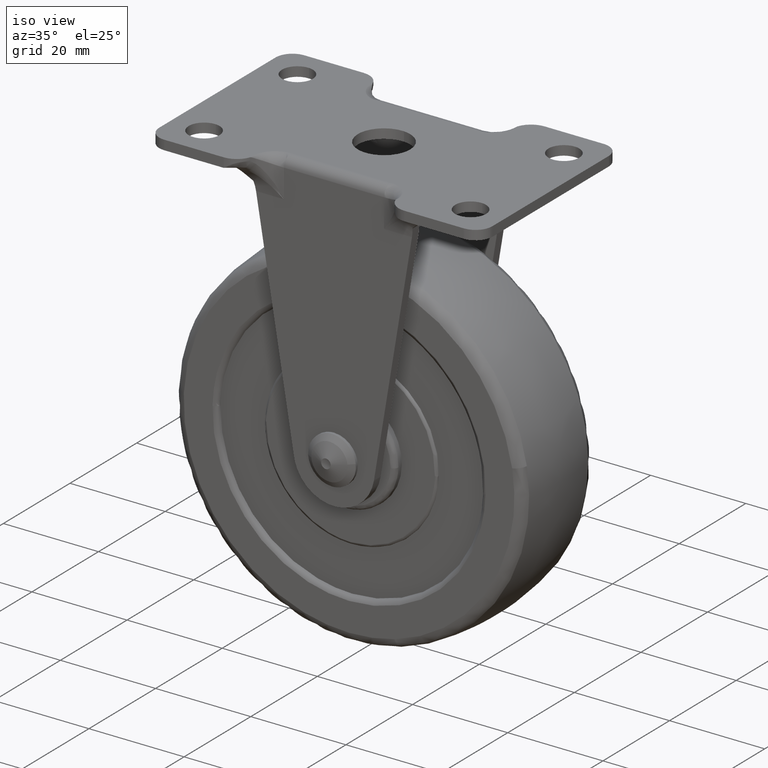
[diagram: clean part render]
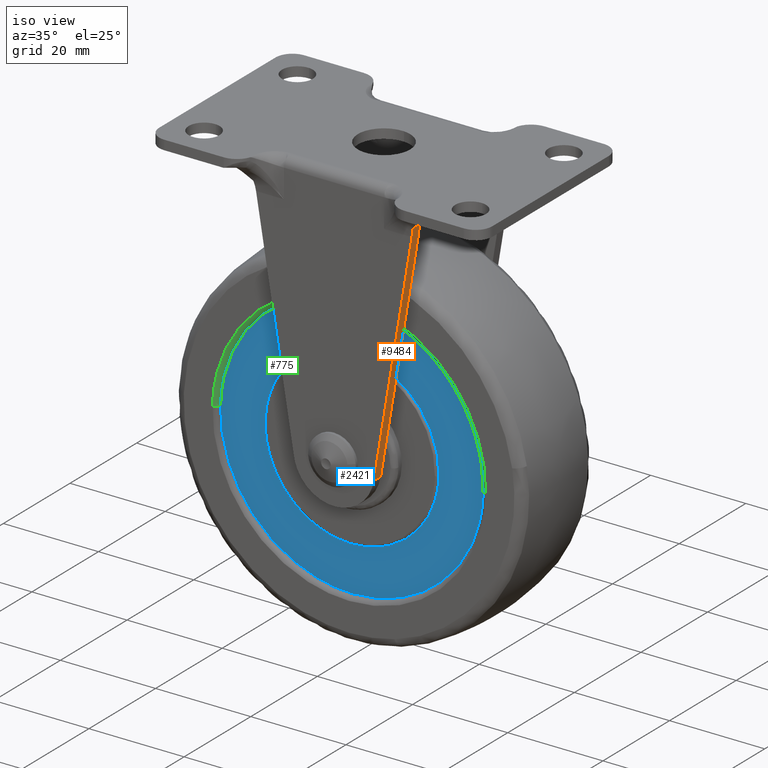
[diagram: same view with three faces highlighted in distinct colors, each labeled with its STEP entity id]
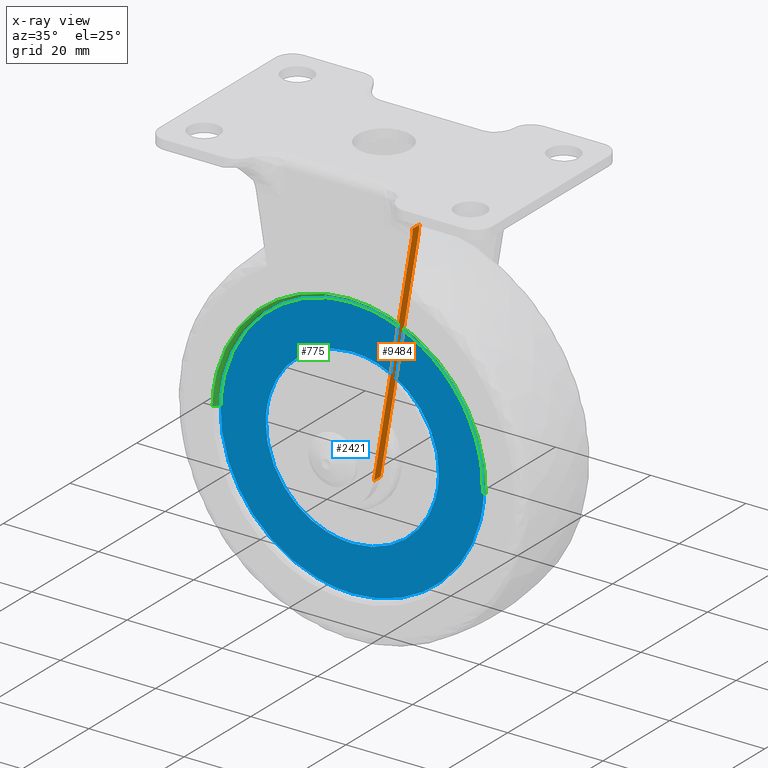
[diagram: x-ray of the same camera — body ghosted, the three highlighted faces saturated]
A machine part, iso view with three faces highlighted in distinct colors.
The next image is the same camera in x-ray (body ghosted, the three faces saturated) — at least one of them is partly hidden behind the body in this view.
Their STEP definitions:

[orange] entity #9484 — the highlighted face is a freeform B-spline surface patch.
#5781=CARTESIAN_POINT('',(16.676913009995399,-13.344930188508719,48.270380773236703));
#5782=VERTEX_POINT('',#5781);
#5790=CARTESIAN_POINT('',(16.680932437881651,-13.203907277976921,48.294697264058499));
#5791=VERTEX_POINT('',#5790);
#5792=CARTESIAN_POINT('',(16.680932437881602,-13.203907277976899,48.294697264058499));
#5793=CARTESIAN_POINT('',(16.678139670267580,-13.248858184895990,48.277801748085373));
#5794=CARTESIAN_POINT('',(16.676922470560491,-13.296859604261870,48.270438007189057));
#5795=CARTESIAN_POINT('',(16.676913009995399,-13.344930188508719,48.270380773236703));
#5796=QUASI_UNIFORM_CURVE('',3,(#5792,#5793,#5794,#5795),.UNSPECIFIED.,.F.,.U.);
#5797=EDGE_CURVE('',#5791,#5782,#5796,.T.);
#5841=CARTESIAN_POINT('',(16.676874599543950,-15.267062302631301,48.270148400018698));
#5842=VERTEX_POINT('',#5841);
#5858=CARTESIAN_POINT('',(16.676913009995399,-13.344930188508719,48.270380773236703));
#5859=CARTESIAN_POINT('',(16.676874599543950,-15.267062302631301,48.270148400018698));
#5860=QUASI_UNIFORM_CURVE('',1,(#5858,#5859),.UNSPECIFIED.,.F.,.U.);
#5861=EDGE_CURVE('',#5782,#5842,#5860,.T.);
#8000=CARTESIAN_POINT('',(16.384275478484749,-13.0,46.500000000000000));
#8001=VERTEX_POINT('',#8000);
#8015=CARTESIAN_POINT('',(16.680932437881641,-13.203907277976921,48.294697264058406));
#8016=CARTESIAN_POINT('',(16.534518688431618,-12.999999999999998,47.408932250850221));
#8017=CARTESIAN_POINT('',(16.384275478484749,-13.0,46.500000000000000));
#8025=(BOUNDED_CURVE()B_SPLINE_CURVE(2,(#8015,#8016,#8017),.UNSPECIFIED.,.F.,.U.)CURVE()GEOMETRIC_REPRESENTATION_ITEM()QUASI_UNIFORM_CURVE()RATIONAL_B_SPLINE_CURVE((1.0,0.993607465313319,1.0))REPRESENTATION_ITEM(''));
#8026=EDGE_CURVE('',#5791,#8001,#8025,.T.);
#8051=CARTESIAN_POINT('',(8.386210000000000,-13.0,-1.886211000000000));
#8052=VERTEX_POINT('',#8051);
#8053=CARTESIAN_POINT('',(16.384275478484749,-13.0,46.500000000000000));
#8054=CARTESIAN_POINT('',(8.386210000000000,-13.0,-1.886211000000000));
#8055=QUASI_UNIFORM_CURVE('',1,(#8053,#8054),.UNSPECIFIED.,.F.,.U.);
#8056=EDGE_CURVE('',#8001,#8052,#8055,.T.);
#8849=CARTESIAN_POINT('',(16.384275478484749,-15.0,46.500000000000000));
#8850=VERTEX_POINT('',#8849);
#8856=CARTESIAN_POINT('',(16.676874599543940,-15.267062302631290,48.270148400018698));
#8857=CARTESIAN_POINT('',(16.533905074382883,-15.000000000000004,47.405220045828251));
#8858=CARTESIAN_POINT('',(16.384275478484749,-15.0,46.500000000000000));
#8866=(BOUNDED_CURVE()B_SPLINE_CURVE(2,(#8856,#8857,#8858),.UNSPECIFIED.,.F.,.U.)CURVE()GEOMETRIC_REPRESENTATION_ITEM()QUASI_UNIFORM_CURVE()RATIONAL_B_SPLINE_CURVE((1.0,0.988809793698496,1.0))REPRESENTATION_ITEM(''));
#8867=EDGE_CURVE('',#5842,#8850,#8866,.T.);
#8895=CARTESIAN_POINT('',(8.386210000000000,-15.0,-1.886211000000000));
#8896=VERTEX_POINT('',#8895);
#8912=CARTESIAN_POINT('',(16.384275478484749,-15.0,46.500000000000000));
#8913=CARTESIAN_POINT('',(8.386210000000000,-15.0,-1.886211000000000));
#8914=QUASI_UNIFORM_CURVE('',1,(#8912,#8913),.UNSPECIFIED.,.F.,.U.);
#8915=EDGE_CURVE('',#8850,#8896,#8914,.T.);
#9466=CARTESIAN_POINT('',(17.095253807576981,-15.380301953845930,50.801233534587887));
#9467=CARTESIAN_POINT('',(7.971888407822805,-15.380301953845930,-4.392748616486232));
#9468=CARTESIAN_POINT('',(17.095253807576981,-12.886760186632440,50.801233534587887));
#9469=CARTESIAN_POINT('',(7.971888407822805,-12.886760186632440,-4.392748616486232));
#9470=B_SPLINE_SURFACE_WITH_KNOTS('',1,1,((#9466,#9468),(#9467,#9469)),.UNSPECIFIED.,.F.,.F.,.U.,(2,2),(2,2),(0.0,55.942930401530809),(0.0,2.493541767213499),.UNSPECIFIED.);
#9471=ORIENTED_EDGE('',*,*,#8026,.F.);
#9472=ORIENTED_EDGE('',*,*,#5797,.T.);
#9473=ORIENTED_EDGE('',*,*,#5861,.T.);
#9474=ORIENTED_EDGE('',*,*,#8867,.T.);
#9475=ORIENTED_EDGE('',*,*,#8915,.T.);
#9476=CARTESIAN_POINT('',(8.386210000000000,-13.0,-1.886211000000000));
#9477=CARTESIAN_POINT('',(8.386210000000000,-15.0,-1.886211000000000));
#9478=QUASI_UNIFORM_CURVE('',1,(#9476,#9477),.UNSPECIFIED.,.F.,.U.);
#9479=EDGE_CURVE('',#8052,#8896,#9478,.T.);
#9480=ORIENTED_EDGE('',*,*,#9479,.F.);
#9481=ORIENTED_EDGE('',*,*,#8056,.F.);
#9482=EDGE_LOOP('',(#9471,#9472,#9473,#9474,#9475,#9480,#9481));
#9483=FACE_OUTER_BOUND('',#9482,.T.);
#9484=ADVANCED_FACE('',(#9483),#9470,.T.);

[blue] entity #2421 — the highlighted face is a freeform B-spline surface patch.
#713=CARTESIAN_POINT('',(-27.691253042830208,-9.500000000019591,0.696103668965716));
#714=VERTEX_POINT('',#713);
#728=CARTESIAN_POINT('',(0.0,-9.500000000000108,27.700001000000000));
#729=VERTEX_POINT('',#728);
#730=CARTESIAN_POINT('',(0.0,-9.500000000000108,27.700001000000000));
#731=CARTESIAN_POINT('',(-27.012428145274118,-9.500000000000108,27.700000999999993));
#732=CARTESIAN_POINT('',(-27.691253042830208,-9.500000000019591,0.696103668965716));
#740=(BOUNDED_CURVE()B_SPLINE_CURVE(2,(#730,#731,#732),.UNSPECIFIED.,.F.,.U.)B_SPLINE_CURVE_WITH_KNOTS((3,3),(0.500000000000000,0.745579891769110),.UNSPECIFIED.)CURVE()GEOMETRIC_REPRESENTATION_ITEM()RATIONAL_B_SPLINE_CURVE((1.0,0.712285260095544,0.989826157679999))REPRESENTATION_ITEM(''));
#741=EDGE_CURVE('',#729,#714,#740,.T.);
#743=CARTESIAN_POINT('',(27.691253042830208,-9.500000000019591,-0.696103668965721));
#744=VERTEX_POINT('',#743);
#745=CARTESIAN_POINT('',(27.691253042830201,-9.500000000019591,-0.696103668965721));
#746=CARTESIAN_POINT('',(27.700000999999993,-9.500000000000108,-0.348106802439844));
#747=CARTESIAN_POINT('',(27.700001000000000,-9.500000000000108,1.211545E-015));
#748=CARTESIAN_POINT('',(27.700001000000000,-9.500000000000108,27.700001000000000));
#749=CARTESIAN_POINT('',(0.0,-9.500000000000108,27.700001000000000));
#757=(BOUNDED_CURVE()B_SPLINE_CURVE(2,(#745,#746,#747,#748,#749),.UNSPECIFIED.,.F.,.U.)B_SPLINE_CURVE_WITH_KNOTS((3,2,3),(0.245579891769110,0.250000000000000,0.500000000000000),.UNSPECIFIED.)CURVE()GEOMETRIC_REPRESENTATION_ITEM()RATIONAL_B_SPLINE_CURVE((0.989826157680000,0.994821521091004,1.0,0.707106781186548,1.0))REPRESENTATION_ITEM(''));
#758=EDGE_CURVE('',#744,#729,#757,.T.);
#815=CARTESIAN_POINT('',(0.0,-9.500000000000108,-27.700001000000000));
#816=VERTEX_POINT('',#815);
#817=CARTESIAN_POINT('',(0.0,-9.500000000000108,-27.700001000000000));
#818=CARTESIAN_POINT('',(27.012428145274189,-9.500000000000108,-27.700001000000000));
#819=CARTESIAN_POINT('',(27.691253042830208,-9.500000000019591,-0.696103668965721));
#827=(BOUNDED_CURVE()B_SPLINE_CURVE(2,(#817,#818,#819),.UNSPECIFIED.,.F.,.U.)B_SPLINE_CURVE_WITH_KNOTS((3,3),(0.0,0.245579891769110),.UNSPECIFIED.)CURVE()GEOMETRIC_REPRESENTATION_ITEM()RATIONAL_B_SPLINE_CURVE((1.0,0.712285260095544,0.989826157680000))REPRESENTATION_ITEM(''));
#828=EDGE_CURVE('',#816,#744,#827,.T.);
#830=CARTESIAN_POINT('',(-27.691253042830208,-9.500000000019591,0.696103668965716));
#831=CARTESIAN_POINT('',(-27.700000999999993,-9.500000000000108,0.348106802439842));
#832=CARTESIAN_POINT('',(-27.700001000000000,-9.500000000000108,1.211545E-015));
#833=CARTESIAN_POINT('',(-27.700001000000000,-9.500000000000108,-27.700001000000000));
#834=CARTESIAN_POINT('',(0.0,-9.500000000000108,-27.700001000000000));
#842=(BOUNDED_CURVE()B_SPLINE_CURVE(2,(#830,#831,#832,#833,#834),.UNSPECIFIED.,.F.,.U.)B_SPLINE_CURVE_WITH_KNOTS((3,2,3),(0.745579891769110,0.750000000000000,1.0),.UNSPECIFIED.)CURVE()GEOMETRIC_REPRESENTATION_ITEM()RATIONAL_B_SPLINE_CURVE((0.989826157680000,0.994821521091004,1.0,0.707106781186548,1.0))REPRESENTATION_ITEM(''));
#843=EDGE_CURVE('',#714,#816,#842,.T.);
#887=CARTESIAN_POINT('',(-18.194253244639640,-9.500000004136529,0.457367762222901));
#888=VERTEX_POINT('',#887);
#889=CARTESIAN_POINT('',(0.0,-9.500000000000108,-18.200001000000000));
#890=VERTEX_POINT('',#889);
#891=CARTESIAN_POINT('',(-18.194253244639640,-9.500000004136529,0.457367762222901));
#892=CARTESIAN_POINT('',(-18.200000999999997,-9.500000000000110,0.228719997236616));
#893=CARTESIAN_POINT('',(-18.200001000000000,-9.500000000000108,1.211545E-015));
#894=CARTESIAN_POINT('',(-18.200001000000004,-9.500000000000108,-18.200001000000004));
#895=CARTESIAN_POINT('',(0.0,-9.500000000000108,-18.200001000000000));
#903=(BOUNDED_CURVE()B_SPLINE_CURVE(2,(#891,#892,#893,#894,#895),.UNSPECIFIED.,.F.,.U.)B_SPLINE_CURVE_WITH_KNOTS((3,2,3),(0.745579891769345,0.750000000000000,1.0),.UNSPECIFIED.)CURVE()GEOMETRIC_REPRESENTATION_ITEM()RATIONAL_B_SPLINE_CURVE((0.989826157680530,0.994821521091278,1.0,0.707106781186548,1.0))REPRESENTATION_ITEM(''));
#904=EDGE_CURVE('',#888,#890,#903,.T.);
#906=CARTESIAN_POINT('',(18.194253244639640,-9.500000004136528,-0.457367762222898));
#907=VERTEX_POINT('',#906);
#908=CARTESIAN_POINT('',(0.0,-9.500000000000108,-18.200001000000000));
#909=CARTESIAN_POINT('',(17.748238321618722,-9.500000000000108,-18.200000999999993));
#910=CARTESIAN_POINT('',(18.194253244639640,-9.500000004136528,-0.457367762222899));
#918=(BOUNDED_CURVE()B_SPLINE_CURVE(2,(#908,#909,#910),.UNSPECIFIED.,.F.,.U.)B_SPLINE_CURVE_WITH_KNOTS((3,3),(0.0,0.245579891769345),.UNSPECIFIED.)CURVE()GEOMETRIC_REPRESENTATION_ITEM()RATIONAL_B_SPLINE_CURVE((1.0,0.712285260095269,0.989826157680530))REPRESENTATION_ITEM(''));
#919=EDGE_CURVE('',#890,#907,#918,.T.);
#1007=CARTESIAN_POINT('',(0.0,-9.500000000000108,18.200001000000000));
#1008=VERTEX_POINT('',#1007);
#1009=CARTESIAN_POINT('',(0.0,-9.500000000000108,18.200001000000000));
#1010=CARTESIAN_POINT('',(-17.748238321618782,-9.500000000000108,18.200000999999997));
#1011=CARTESIAN_POINT('',(-18.194253244639636,-9.500000004136529,0.457367762222901));
#1019=(BOUNDED_CURVE()B_SPLINE_CURVE(2,(#1009,#1010,#1011),.UNSPECIFIED.,.F.,.U.)B_SPLINE_CURVE_WITH_KNOTS((3,3),(0.500000000000000,0.745579891769345),.UNSPECIFIED.)CURVE()GEOMETRIC_REPRESENTATION_ITEM()RATIONAL_B_SPLINE_CURVE((1.0,0.712285260095269,0.989826157680531))REPRESENTATION_ITEM(''));
#1020=EDGE_CURVE('',#1008,#888,#1019,.T.);
#1054=CARTESIAN_POINT('',(18.194253244639640,-9.500000004136528,-0.457367762222899));
#1055=CARTESIAN_POINT('',(18.200000999999997,-9.500000000000110,-0.228719997236614));
#1056=CARTESIAN_POINT('',(18.200001000000000,-9.500000000000108,1.211545E-015));
#1057=CARTESIAN_POINT('',(18.200001000000004,-9.500000000000108,18.200001000000004));
#1058=CARTESIAN_POINT('',(0.0,-9.500000000000108,18.200001000000000));
#1066=(BOUNDED_CURVE()B_SPLINE_CURVE(2,(#1054,#1055,#1056,#1057,#1058),.UNSPECIFIED.,.F.,.U.)B_SPLINE_CURVE_WITH_KNOTS((3,2,3),(0.245579891769345,0.250000000000000,0.500000000000000),.UNSPECIFIED.)CURVE()GEOMETRIC_REPRESENTATION_ITEM()RATIONAL_B_SPLINE_CURVE((0.989826157680530,0.994821521091278,1.0,0.707106781186548,1.0))REPRESENTATION_ITEM(''));
#1067=EDGE_CURVE('',#907,#1008,#1066,.T.);
#2404=CARTESIAN_POINT('',(-30.457610154249579,-9.500000000000108,30.467230992524041));
#2405=CARTESIAN_POINT('',(-30.457610154249579,-9.500000000000108,-30.467232478467889));
#2406=CARTESIAN_POINT('',(30.457610649407769,-9.500000000000108,30.467230992524041));
#2407=CARTESIAN_POINT('',(30.457610649407769,-9.500000000000108,-30.467232478467889));
#2408=B_SPLINE_SURFACE_WITH_KNOTS('',1,1,((#2404,#2406),(#2405,#2407)),.UNSPECIFIED.,.F.,.F.,.U.,(2,2),(2,2),(0.0,60.934463470991943),(0.0,60.915220803657348),.UNSPECIFIED.);
#2409=ORIENTED_EDGE('',*,*,#828,.T.);
#2410=ORIENTED_EDGE('',*,*,#758,.T.);
#2411=ORIENTED_EDGE('',*,*,#741,.T.);
#2412=ORIENTED_EDGE('',*,*,#843,.T.);
#2413=EDGE_LOOP('',(#2409,#2410,#2411,#2412));
#2414=FACE_OUTER_BOUND('',#2413,.T.);
#2415=ORIENTED_EDGE('',*,*,#919,.F.);
#2416=ORIENTED_EDGE('',*,*,#904,.F.);
#2417=ORIENTED_EDGE('',*,*,#1020,.F.);
#2418=ORIENTED_EDGE('',*,*,#1067,.F.);
#2419=EDGE_LOOP('',(#2415,#2416,#2417,#2418));
#2420=FACE_BOUND('',#2419,.T.);
#2421=ADVANCED_FACE('',(#2414,#2420),#2408,.T.);

[green] entity #775 — the highlighted face is a freeform B-spline surface patch.
#656=CARTESIAN_POINT('',(28.760639749933521,-10.497566282940518,-0.722985948637890));
#657=CARTESIAN_POINT('',(29.483625698571416,-10.497566282940515,28.037653801295622));
#658=CARTESIAN_POINT('',(0.722985948637892,-10.497566282940518,28.760639749933521));
#659=CARTESIAN_POINT('',(-28.037653801295622,-10.497566282940515,29.483625698571416));
#660=CARTESIAN_POINT('',(-28.760639749933521,-10.497566282940518,0.722985948637893));
#661=CARTESIAN_POINT('',(27.613941736902497,-10.577739648912944,-0.694160214650024));
#662=CARTESIAN_POINT('',(28.308101951552533,-10.577739648912944,26.919781522252482));
#663=CARTESIAN_POINT('',(0.694160214650026,-10.577739648912944,27.613941736902497));
#664=CARTESIAN_POINT('',(-26.919781522252482,-10.577739648912944,28.308101951552533));
#665=CARTESIAN_POINT('',(-27.613941736902497,-10.577739648912944,0.694160214650028));
#666=CARTESIAN_POINT('',(27.693659933080887,-9.430649409224731,-0.696164173400207));
#667=CARTESIAN_POINT('',(28.389824106481090,-9.430649409224731,26.997495759680671));
#668=CARTESIAN_POINT('',(0.696164173400209,-9.430649409224731,27.693659933080887));
#669=CARTESIAN_POINT('',(-26.997495759680671,-9.430649409224731,28.389824106481090));
#670=CARTESIAN_POINT('',(-27.693659933080887,-9.430649409224731,0.696164173400211));
#678=(BOUNDED_SURFACE()B_SPLINE_SURFACE(2,2,((#656,#661,#666),(#657,#662,#667),(#658,#663,#668),(#659,#664,#669),(#660,#665,#670)),.UNSPECIFIED.,.F.,.F.,.U.)B_SPLINE_SURFACE_WITH_KNOTS((3,2,3),(3,3),(0.0,47.667242013660257,95.334484027320528),(0.0,1.822370772989329),.UNSPECIFIED.)GEOMETRIC_REPRESENTATION_ITEM()RATIONAL_B_SPLINE_SURFACE(((0.910893087065993,0.599412856614250,0.915966628368002),(0.644098678800312,0.423848895642336,0.647686214259592),(0.910893087065993,0.599412856614250,0.915966628368002),(0.644098678800312,0.423848895642336,0.647686214259592),(0.910893087065993,0.599412856614250,0.915966628368002)))REPRESENTATION_ITEM('')SURFACE());
#679=CARTESIAN_POINT('',(28.690937227376921,-10.499999999999940,-0.721233764432394));
#680=VERTEX_POINT('',#679);
#681=CARTESIAN_POINT('',(0.0,-10.500000000000000,28.700001000000000));
#682=VERTEX_POINT('',#681);
#683=CARTESIAN_POINT('',(28.690937227376914,-10.499999999999940,-0.721233764432394));
#684=CARTESIAN_POINT('',(28.700000999999997,-10.499999999999998,-0.360673834705606));
#685=CARTESIAN_POINT('',(28.700001000000000,-10.500000000000000,1.211545E-015));
#686=CARTESIAN_POINT('',(28.700000999999997,-10.500000000000000,28.700000999999997));
#687=CARTESIAN_POINT('',(0.0,-10.500000000000000,28.700001000000000));
#695=(BOUNDED_CURVE()B_SPLINE_CURVE(2,(#683,#684,#685,#686,#687),.UNSPECIFIED.,.F.,.U.)B_SPLINE_CURVE_WITH_KNOTS((3,2,3),(0.245579891767399,0.250000000000000,0.500000000000000),.UNSPECIFIED.)CURVE()GEOMETRIC_REPRESENTATION_ITEM()RATIONAL_B_SPLINE_CURVE((0.989826157676131,0.994821521088998,1.0,0.707106781186547,1.0))REPRESENTATION_ITEM(''));
#696=EDGE_CURVE('',#680,#682,#695,.T.);
#697=ORIENTED_EDGE('',*,*,#696,.T.);
#698=CARTESIAN_POINT('',(-28.690937227376910,-10.499999999999950,0.721233764432392));
#699=VERTEX_POINT('',#698);
#700=CARTESIAN_POINT('',(0.0,-10.500000000000000,28.700001000000000));
#701=CARTESIAN_POINT('',(-27.987606021176973,-10.500000000000000,28.700001000000004));
#702=CARTESIAN_POINT('',(-28.690937227376910,-10.499999999999947,0.721233764432392));
#710=(BOUNDED_CURVE()B_SPLINE_CURVE(2,(#700,#701,#702),.UNSPECIFIED.,.F.,.U.)B_SPLINE_CURVE_WITH_KNOTS((3,3),(0.500000000000000,0.745579891767398),.UNSPECIFIED.)CURVE()GEOMETRIC_REPRESENTATION_ITEM()RATIONAL_B_SPLINE_CURVE((1.0,0.712285260097550,0.989826157676130))REPRESENTATION_ITEM(''));
#711=EDGE_CURVE('',#682,#699,#710,.T.);
#712=ORIENTED_EDGE('',*,*,#711,.T.);
#713=CARTESIAN_POINT('',(-27.691253042830208,-9.500000000019591,0.696103668965716));
#714=VERTEX_POINT('',#713);
#715=CARTESIAN_POINT('',(-28.690937227376910,-10.499999999999945,0.721233764432392));
#716=CARTESIAN_POINT('',(-27.691253042870766,-10.499999990530869,0.696103668911534));
#717=CARTESIAN_POINT('',(-27.691253042830212,-9.500000000019593,0.696103668965716));
#725=(BOUNDED_CURVE()B_SPLINE_CURVE(2,(#715,#716,#717),.UNSPECIFIED.,.F.,.U.)B_SPLINE_CURVE_WITH_KNOTS((3,3),(-1.723441272235563,-0.263586878968385),.UNSPECIFIED.)CURVE()GEOMETRIC_REPRESENTATION_ITEM()RATIONAL_B_SPLINE_CURVE((0.883897563702610,0.626638728993519,0.888510409048000))REPRESENTATION_ITEM(''));
#726=EDGE_CURVE('',#699,#714,#725,.T.);
#727=ORIENTED_EDGE('',*,*,#726,.T.);
#728=CARTESIAN_POINT('',(0.0,-9.500000000000108,27.700001000000000));
#729=VERTEX_POINT('',#728);
#730=CARTESIAN_POINT('',(0.0,-9.500000000000108,27.700001000000000));
#731=CARTESIAN_POINT('',(-27.012428145274118,-9.500000000000108,27.700000999999993));
#732=CARTESIAN_POINT('',(-27.691253042830208,-9.500000000019591,0.696103668965716));
#740=(BOUNDED_CURVE()B_SPLINE_CURVE(2,(#730,#731,#732),.UNSPECIFIED.,.F.,.U.)B_SPLINE_CURVE_WITH_KNOTS((3,3),(0.500000000000000,0.745579891769110),.UNSPECIFIED.)CURVE()GEOMETRIC_REPRESENTATION_ITEM()RATIONAL_B_SPLINE_CURVE((1.0,0.712285260095544,0.989826157679999))REPRESENTATION_ITEM(''));
#741=EDGE_CURVE('',#729,#714,#740,.T.);
#742=ORIENTED_EDGE('',*,*,#741,.F.);
#743=CARTESIAN_POINT('',(27.691253042830208,-9.500000000019591,-0.696103668965721));
#744=VERTEX_POINT('',#743);
#745=CARTESIAN_POINT('',(27.691253042830201,-9.500000000019591,-0.696103668965721));
#746=CARTESIAN_POINT('',(27.700000999999993,-9.500000000000108,-0.348106802439844));
#747=CARTESIAN_POINT('',(27.700001000000000,-9.500000000000108,1.211545E-015));
#748=CARTESIAN_POINT('',(27.700001000000000,-9.500000000000108,27.700001000000000));
#749=CARTESIAN_POINT('',(0.0,-9.500000000000108,27.700001000000000));
#757=(BOUNDED_CURVE()B_SPLINE_CURVE(2,(#745,#746,#747,#748,#749),.UNSPECIFIED.,.F.,.U.)B_SPLINE_CURVE_WITH_KNOTS((3,2,3),(0.245579891769110,0.250000000000000,0.500000000000000),.UNSPECIFIED.)CURVE()GEOMETRIC_REPRESENTATION_ITEM()RATIONAL_B_SPLINE_CURVE((0.989826157680000,0.994821521091004,1.0,0.707106781186548,1.0))REPRESENTATION_ITEM(''));
#758=EDGE_CURVE('',#744,#729,#757,.T.);
#759=ORIENTED_EDGE('',*,*,#758,.F.);
#760=CARTESIAN_POINT('',(28.690937227376917,-10.499999999999943,-0.721233764432394));
#761=CARTESIAN_POINT('',(27.691253042870763,-10.499999990530874,-0.696103668911538));
#762=CARTESIAN_POINT('',(27.691253042830212,-9.500000000019593,-0.696103668965721));
#770=(BOUNDED_CURVE()B_SPLINE_CURVE(2,(#760,#761,#762),.UNSPECIFIED.,.F.,.U.)B_SPLINE_CURVE_WITH_KNOTS((3,3),(-1.723441272235567,-0.263586878968385),.UNSPECIFIED.)CURVE()GEOMETRIC_REPRESENTATION_ITEM()RATIONAL_B_SPLINE_CURVE((0.883897563702612,0.626638728993518,0.888510409048000))REPRESENTATION_ITEM(''));
#771=EDGE_CURVE('',#680,#744,#770,.T.);
#772=ORIENTED_EDGE('',*,*,#771,.F.);
#773=EDGE_LOOP('',(#697,#712,#727,#742,#759,#772));
#774=FACE_OUTER_BOUND('',#773,.T.);
#775=ADVANCED_FACE('',(#774),#678,.T.);